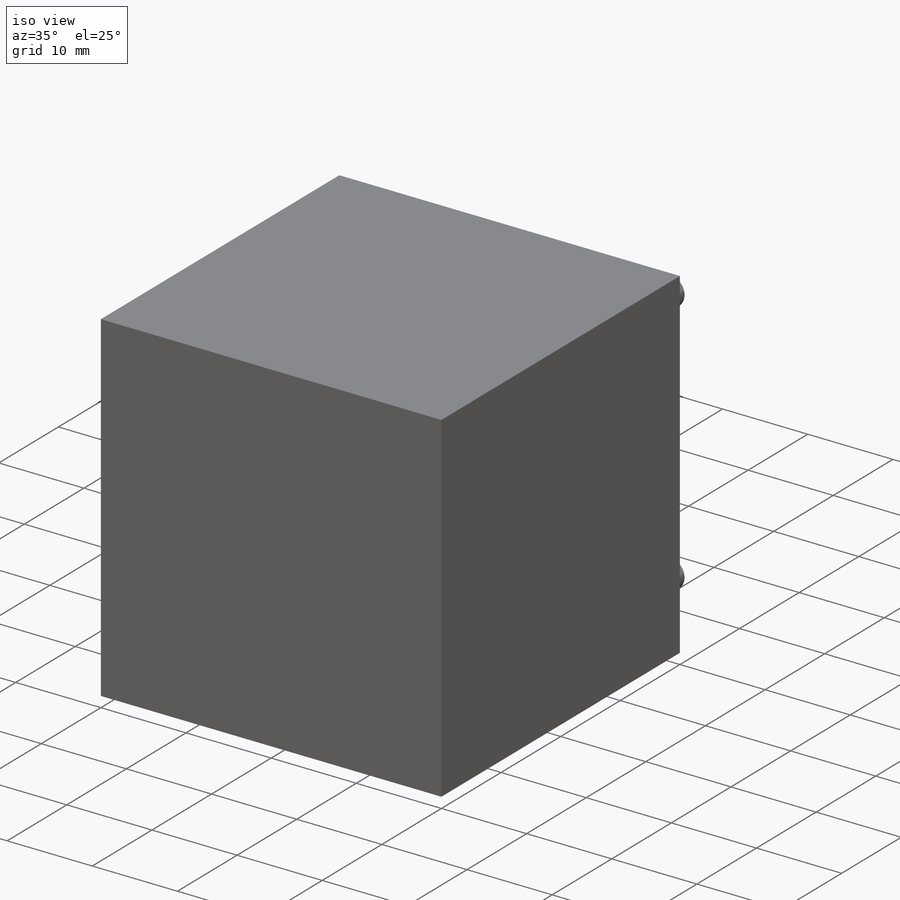
[diagram: iso view]
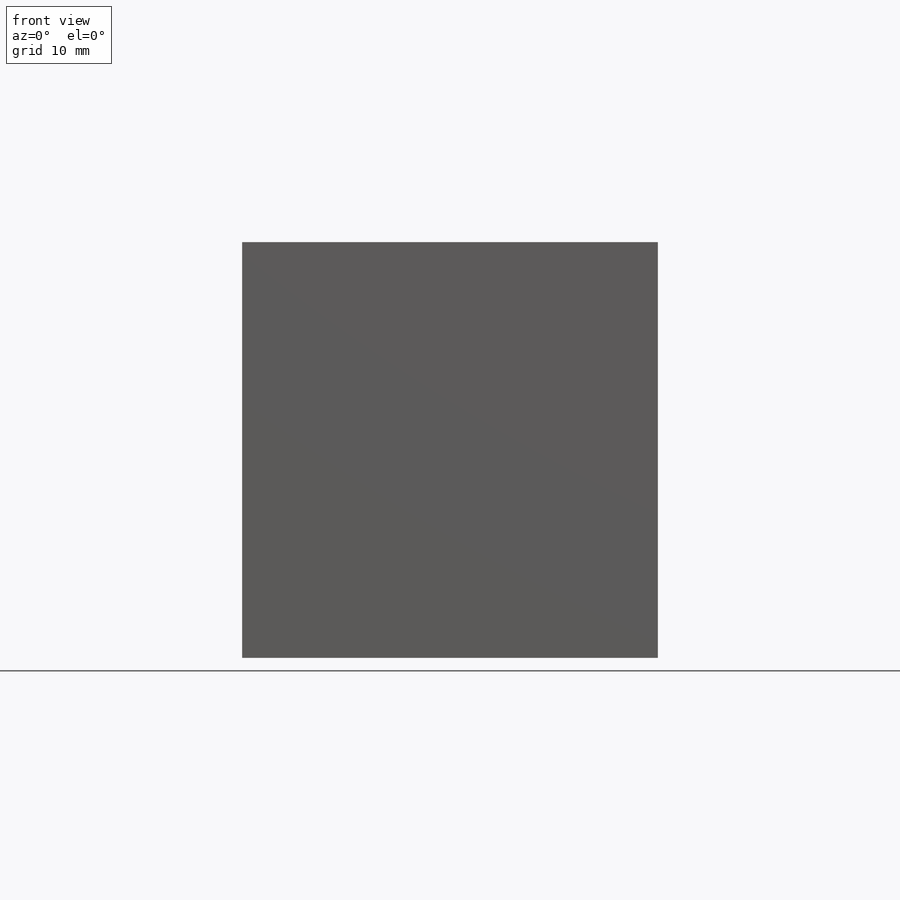
[diagram: front view]
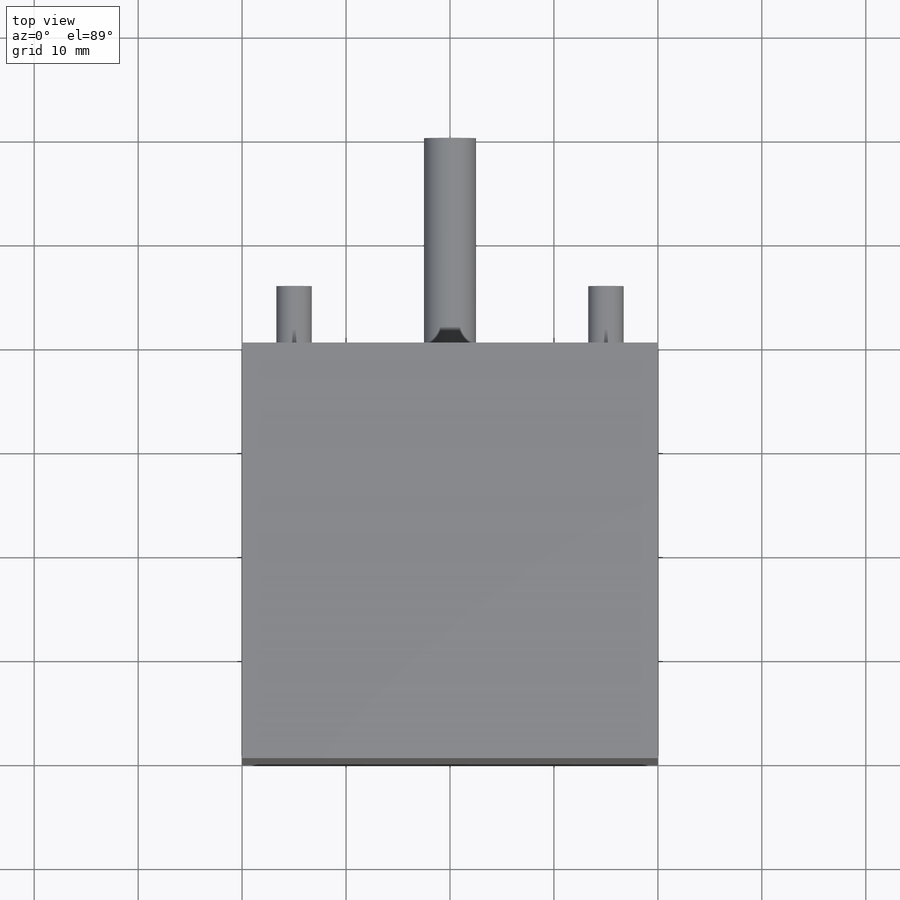
[diagram: top view]
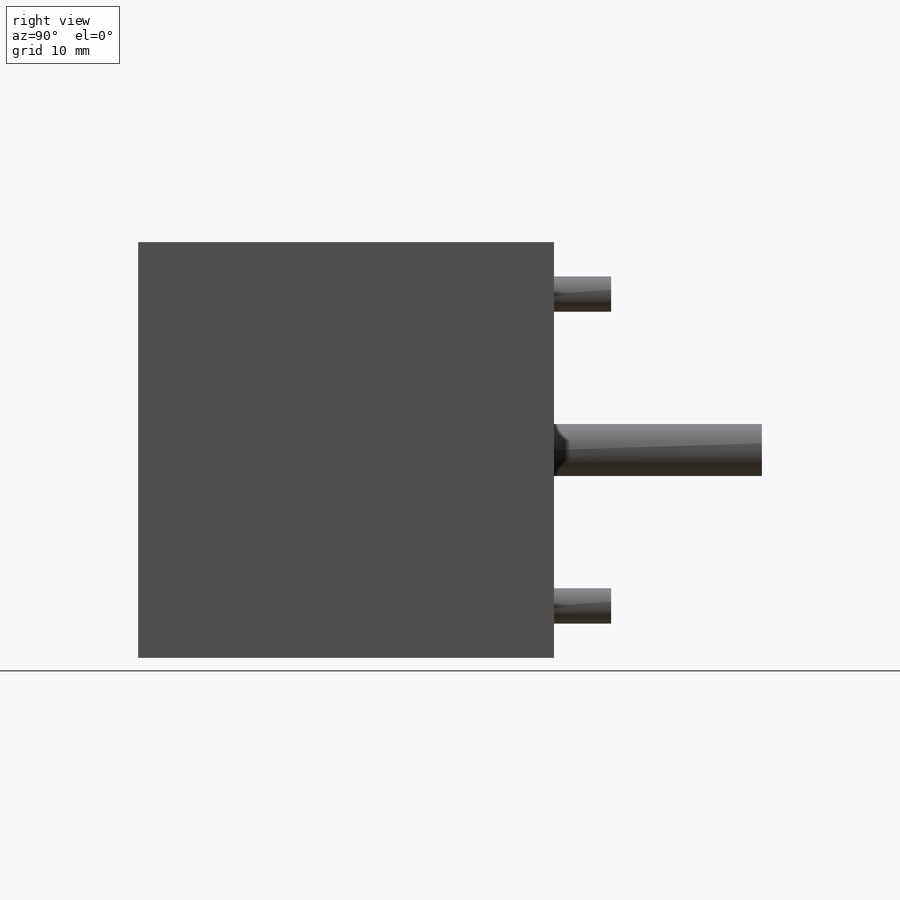
[diagram: right view]
SOLIDWORKS PART (.sldprt)
format: sldprt  version: not decoded by parser v0  size: 129,024 bytes
history: native  units: mm
features: sketch x3, extrude x3, mirror x2, material x1 (+16 scaffold rows collapsed)
feature tree (25):
  scaffold x16  (default folders/planes/origin — collapsed)
  material  "Material <not specified>"
  sketch  "Sketch1"  dims[c1.D1=53.07mm c1.D2=53.07mm c2.D1=40.0mm c2.D2=40.0mm]
  extrude  "Boss-Extrude1"  Depth=40mm
  sketch  "Sketch2"  dims[c1.D3=3.4mm c1.D1=5.0mm c1.D2=~6.794417mm c2.D2=90.0deg c3.D2=5.0mm]
  extrude  "Boss-Extrude2"  Depth=5mm
  mirror  "Mirror1"
  mirror  "Mirror2"
  sketch  "Sketch3"  dims[D1=5.0mm]
  extrude  "Boss-Extrude3"  Depth=20mm
decode coverage: 6 of 8 modeling features carry decoded parameters
note: ~ marks probable driven/reference dimensions
note: suppression state not decoded; provenance and decode notes live in map.json
